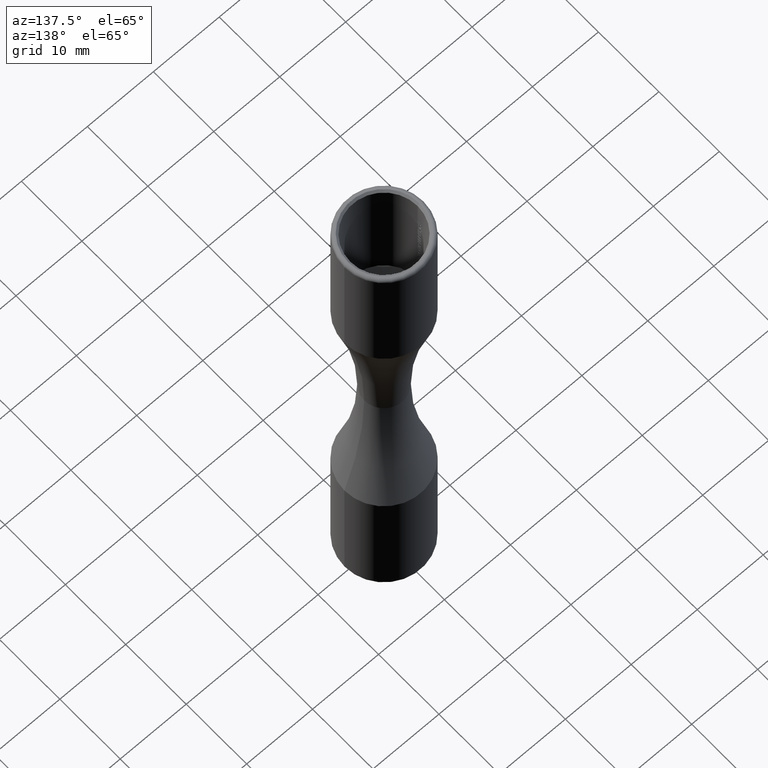
[diagram: clean part render]
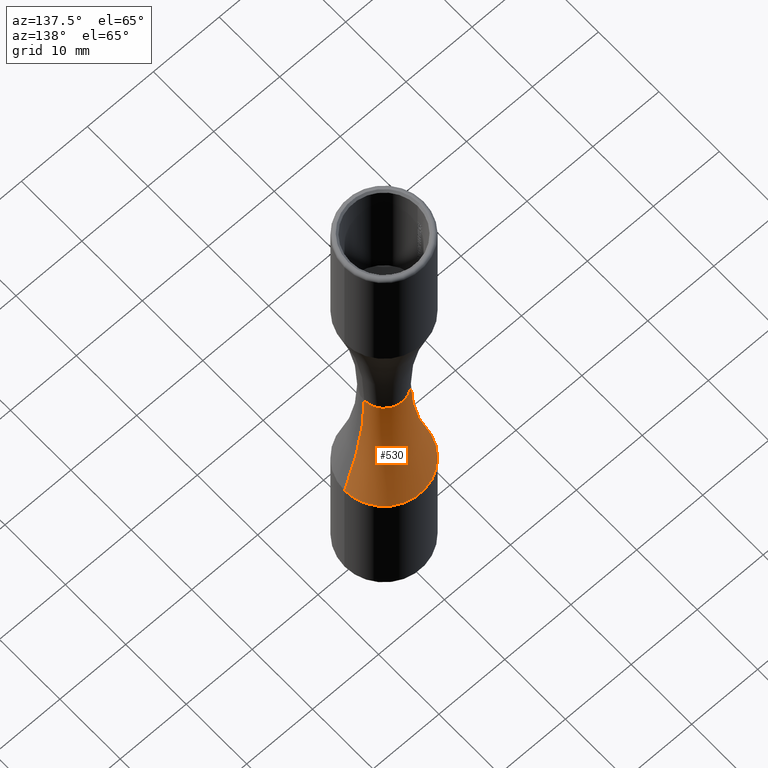
[diagram: same view with one face highlighted and labeled with its STEP entity id]
A machine part, auxiliary view. The second image highlights one B-rep face of the part: STEP entity #530.
In plain terms, the highlighted toroidal blend (fillet) surface has major radius 67.9 mm and minor (blend) radius 64.9 mm.
Its self-contained STEP definition (entity closure, byte-faithful):
#218 = CARTESIAN_POINT ( 'NONE',  ( 0.000000000000000000, 0.000000000000000000, 7.947957726466321528E-15 ) ) ;
#469 = DIRECTION ( 'NONE',  ( -0.000000000000000000, -0.000000000000000000, -1.000000000000000000 ) ) ;
#530 = ADVANCED_FACE ( 'NONE', ( #560 ), #11128, .F. ) ;
#560 = FACE_OUTER_BOUND ( 'NONE', #2026, .T. ) ;
#565 = DIRECTION ( 'NONE',  ( 0.000000000000000000, -1.000000000000000000, 0.000000000000000000 ) ) ;
#644 = CIRCLE ( 'NONE', #9687, 64.90000000000000568 ) ;
#1296 = ORIENTED_EDGE ( 'NONE', *, *, #12755, .F. ) ;
#1383 = EDGE_CURVE ( 'NONE', #3558, #1563, #9714, .T. ) ;
#1403 = AXIS2_PLACEMENT_3D ( 'NONE', #5058, #7883, #5901 ) ;
#1563 = VERTEX_POINT ( 'NONE', #12054 ) ;
#1582 = DIRECTION ( 'NONE',  ( 0.000000000000000000, 0.000000000000000000, -1.000000000000000000 ) ) ;
#1682 = CIRCLE ( 'NONE', #1403, 64.90000000000000568 ) ;
#1912 = ORIENTED_EDGE ( 'NONE', *, *, #3209, .T. ) ;
#2026 = EDGE_LOOP ( 'NONE', ( #10248, #1912, #1296, #4674 ) ) ;
#3209 = EDGE_CURVE ( 'NONE', #9806, #10405, #7529, .T. ) ;
#3558 = VERTEX_POINT ( 'NONE', #3620 ) ;
#3620 = CARTESIAN_POINT ( 'NONE',  ( -5.999999999999995559, -4.336808689942017736E-15, -19.50384577461580093 ) ) ;
#4674 = ORIENTED_EDGE ( 'NONE', *, *, #1383, .F. ) ;
#5058 = CARTESIAN_POINT ( 'NONE',  ( 67.90000000000000568, 8.315351766210528550E-15, 0.000000000000000000 ) ) ;
#5182 = DIRECTION ( 'NONE',  ( -1.000000000000000000, 0.000000000000000000, 0.000000000000000000 ) ) ;
#5553 = DIRECTION ( 'NONE',  ( -0.000000000000000000, -0.000000000000000000, -1.000000000000000000 ) ) ;
#5636 = DIRECTION ( 'NONE',  ( -1.000000000000000000, 0.000000000000000000, 0.000000000000000000 ) ) ;
#5901 = DIRECTION ( 'NONE',  ( -1.000000000000000000, -1.224646799147352961E-16, 0.000000000000000000 ) ) ;
#6290 = CARTESIAN_POINT ( 'NONE',  ( -3.000000000000002665, 0.000000000000000000, 7.947957726466321528E-15 ) ) ;
#6430 = CARTESIAN_POINT ( 'NONE',  ( 0.000000000000000000, -4.336808689942017736E-15, -19.50384577461580093 ) ) ;
#6520 = DIRECTION ( 'NONE',  ( -1.000000000000000000, 0.000000000000000000, 0.000000000000000000 ) ) ;
#7067 = AXIS2_PLACEMENT_3D ( 'NONE', #218, #7259, #5182 ) ;
#7079 = EDGE_CURVE ( 'NONE', #3558, #9806, #644, .T. ) ;
#7259 = DIRECTION ( 'NONE',  ( -0.000000000000000000, -0.000000000000000000, -1.000000000000000000 ) ) ;
#7529 = CIRCLE ( 'NONE', #7067, 3.000000000000002665 ) ;
#7531 = CARTESIAN_POINT ( 'NONE',  ( 3.000000000000002665, 3.673940397442066771E-16, 7.947957726466321528E-15 ) ) ;
#7883 = DIRECTION ( 'NONE',  ( -1.224646799147353207E-16, 1.000000000000000000, 0.000000000000000000 ) ) ;
#8857 = AXIS2_PLACEMENT_3D ( 'NONE', #6430, #5553, #6520 ) ;
#9687 = AXIS2_PLACEMENT_3D ( 'NONE', #10427, #565, #1582 ) ;
#9714 = CIRCLE ( 'NONE', #8857, 5.999999999999995559 ) ;
#9806 = VERTEX_POINT ( 'NONE', #6290 ) ;
#10248 = ORIENTED_EDGE ( 'NONE', *, *, #7079, .T. ) ;
#10405 = VERTEX_POINT ( 'NONE', #7531 ) ;
#10427 = CARTESIAN_POINT ( 'NONE',  ( -67.90000000000000568, 0.000000000000000000, 0.000000000000000000 ) ) ;
#10685 = AXIS2_PLACEMENT_3D ( 'NONE', #12373, #469, #5636 ) ;
#11128 = TOROIDAL_SURFACE ( 'NONE', #10685, 67.90000000000000568, 64.90000000000000568 ) ;
#12054 = CARTESIAN_POINT ( 'NONE',  ( 5.999999999999995559, -3.602020610453606058E-15, -19.50384577461580093 ) ) ;
#12373 = CARTESIAN_POINT ( 'NONE',  ( 0.000000000000000000, 0.000000000000000000, 0.000000000000000000 ) ) ;
#12755 = EDGE_CURVE ( 'NONE', #1563, #10405, #1682, .T. ) ;